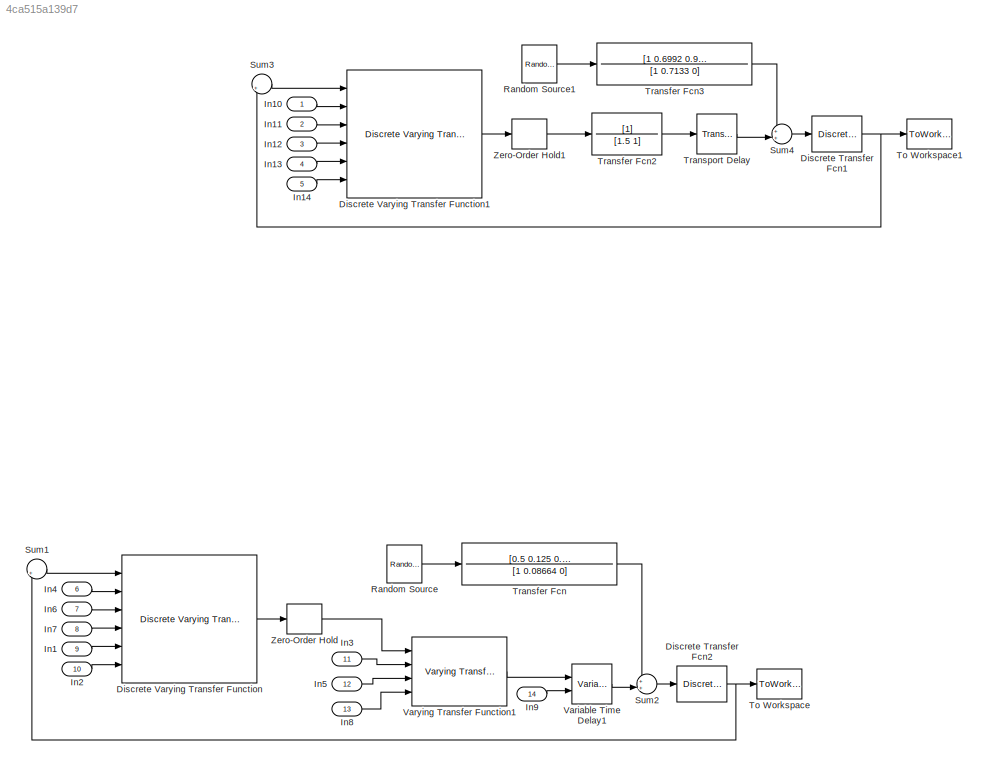
MODEL slx_4ca515a139d7
KIND model
CONFIG AbsTol = auto
CONFIG EnableMultiTasking = off
CONFIG FixedStep = auto
CONFIG MaxStep = auto
CONFIG MinStep = auto
CONFIG RelTol = 1e-3
CONFIG SampleTimeConstraint = Unconstrained
CONFIG SolverName = VariableStepAuto
CONFIG StartTime = 0.0
CONFIG StopTime = 10.0
BLOCK [DiscreteTransferFcn] Discrete Transfer Fcn1
  Denominator = [1]
  InputPortMap = u0
  Ports = [1, 1]
  SampleTime = Ts
BLOCK [DiscreteTransferFcn] Discrete Transfer Fcn2
  Denominator = [1]
  InputPortMap = u0
  Ports = [1, 1]
  SampleTime = Ts
BLOCK [Reference] Discrete Varying Transfer Function  REF=cstblocks/Linear Parameter Varying/Discrete Varying Transfer Function
  Ports = [6, 1]
  SourceBlock = cstblocks/Linear Parameter Varying/Discrete Varying Transfer Function
  SourceProductBaseCode = CT
  SourceType = Discrete Varying Transfer Function
BLOCK [Reference] Discrete Varying Transfer Function1  REF=cstblocks/Linear Parameter Varying/Discrete Varying Transfer Function
  Ports = [6, 1]
  SourceBlock = cstblocks/Linear Parameter Varying/Discrete Varying Transfer Function
  SourceProductBaseCode = CT
  SourceType = Discrete Varying Transfer Function
BLOCK [Inport] In1
  Port = 9
BLOCK [Inport] In10
BLOCK [Inport] In11
  Port = 2
BLOCK [Inport] In12
  Port = 3
BLOCK [Inport] In13
  Port = 4
BLOCK [Inport] In14
  Port = 5
BLOCK [Inport] In2
  Port = 10
BLOCK [Inport] In3
  Port = 11
BLOCK [Inport] In4
  Port = 6
BLOCK [Inport] In5
  Port = 12
BLOCK [Inport] In6
  Port = 7
BLOCK [Inport] In7
  Port = 8
BLOCK [Inport] In8
  Port = 13
BLOCK [Inport] In9
  Port = 14
BLOCK [Reference] Random Source  REF=dspsrcs4/Random
Source
  Ports = [0, 1]
  SourceBlock = dspsrcs4/Random\nSource
  SourceProductBaseCode = DS
  SourceType = Random Source
  UserDataPersistent = on
BLOCK [Reference] Random Source1  REF=dspsrcs4/Random
Source
  Ports = [0, 1]
  SourceBlock = dspsrcs4/Random\nSource
  SourceProductBaseCode = DS
  SourceType = Random Source
  UserDataPersistent = on
BLOCK [Sum] Sum1
  Inputs = |+-
  Ports = [2, 1]
BLOCK [Sum] Sum2
  Inputs = ++|
  Ports = [2, 1]
BLOCK [Sum] Sum3
  Inputs = |+-
  Ports = [2, 1]
BLOCK [Sum] Sum4
  Inputs = ++|
  Ports = [2, 1]
BLOCK [ToWorkspace] To Workspace
  FixptAsFi = on
  MaxDataPoints = inf
  Ports = [1]
  SampleTime = Ts
  VariableName = y
BLOCK [ToWorkspace] To Workspace1
  FixptAsFi = on
  MaxDataPoints = inf
  Ports = [1]
  SampleTime = Ts
  VariableName = y
BLOCK [TransferFcn] Transfer Fcn
  Denominator = [1 0.08664 0]
  Numerator = [0.5 0.125 0.01083]
BLOCK [TransferFcn] Transfer Fcn2
  Denominator = [1.5 1]
BLOCK [TransferFcn] Transfer Fcn3
  Denominator = [1 0.7133 0]
  Numerator = [1 0.6992 0.9512]
BLOCK [TransportDelay] Transport Delay
  DelayTime = 5
  Ports = [1, 1]
BLOCK [VariableTransportDelay] Variable Time Delay1
  MaximumDelay = 200
  Ports = [2, 1]
BLOCK [Reference] Varying Transfer Function1  REF=cstblocks/Linear Parameter Varying/Varying Transfer Function
  Ports = [4, 1]
  SourceBlock = cstblocks/Linear Parameter Varying/Varying Transfer Function
  SourceProductBaseCode = CT
  SourceType = Varying Transfer Function
BLOCK [ZeroOrderHold] Zero-Order Hold
  SampleTime = Ts
BLOCK [ZeroOrderHold] Zero-Order Hold1
  SampleTime = Ts
NET Discrete Transfer Fcn1:1 -> Sum3:2, To Workspace1:1
NET Discrete Transfer Fcn2:1 -> Sum1:2, To Workspace:1
LINE Discrete Varying Transfer Function1:1 -> Zero-Order Hold1:1
LINE Discrete Varying Transfer Function:1 -> Zero-Order Hold:1
LINE In10:1 -> Discrete Varying Transfer Function1:2
LINE In11:1 -> Discrete Varying Transfer Function1:3
LINE In12:1 -> Discrete Varying Transfer Function1:4
LINE In13:1 -> Discrete Varying Transfer Function1:5
LINE In14:1 -> Discrete Varying Transfer Function1:6
LINE In1:1 -> Discrete Varying Transfer Function:5
LINE In2:1 -> Discrete Varying Transfer Function:6
LINE In3:1 -> Varying Transfer Function1:2
LINE In4:1 -> Discrete Varying Transfer Function:2
LINE In5:1 -> Varying Transfer Function1:3
LINE In6:1 -> Discrete Varying Transfer Function:3
LINE In7:1 -> Discrete Varying Transfer Function:4
LINE In8:1 -> Varying Transfer Function1:4
LINE In9:1 -> Variable Time Delay1:2
LINE Random Source1:1 -> Transfer Fcn3:1
LINE Random Source:1 -> Transfer Fcn:1
LINE Sum1:1 -> Discrete Varying Transfer Function:1
LINE Sum2:1 -> Discrete Transfer Fcn2:1
LINE Sum3:1 -> Discrete Varying Transfer Function1:1
LINE Sum4:1 -> Discrete Transfer Fcn1:1
LINE Transfer Fcn2:1 -> Transport Delay:1
LINE Transfer Fcn3:1 -> Sum4:1
LINE Transfer Fcn:1 -> Sum2:1
LINE Transport Delay:1 -> Sum4:2
LINE Variable Time Delay1:1 -> Sum2:2
LINE Varying Transfer Function1:1 -> Variable Time Delay1:1
LINE Zero-Order Hold1:1 -> Transfer Fcn2:1
LINE Zero-Order Hold:1 -> Varying Transfer Function1:1
note: NET lines group one-source signal fan-out (src -> all destinations, sorted); 1:1 wires keep LINE
